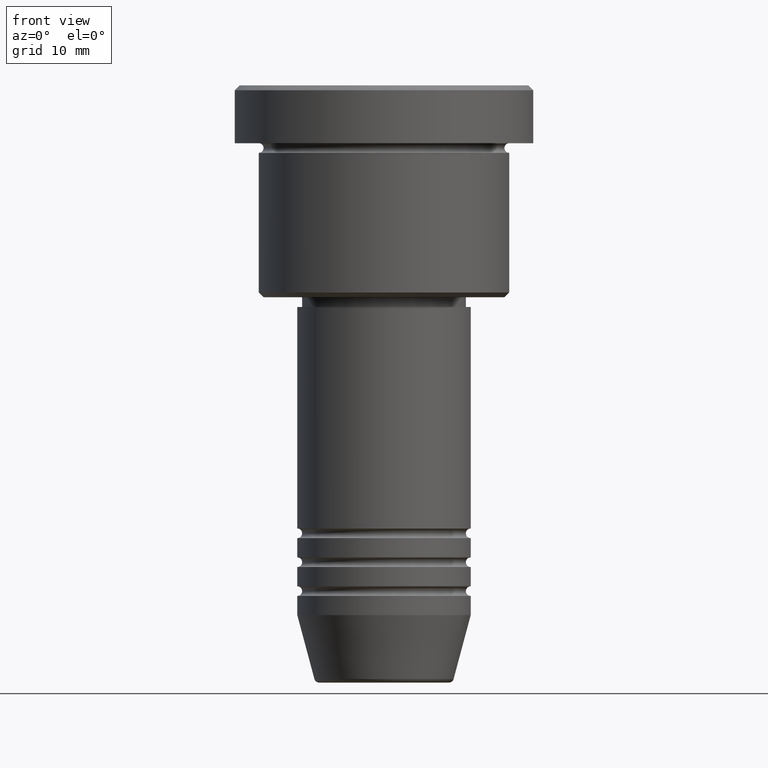
[diagram: clean part render]
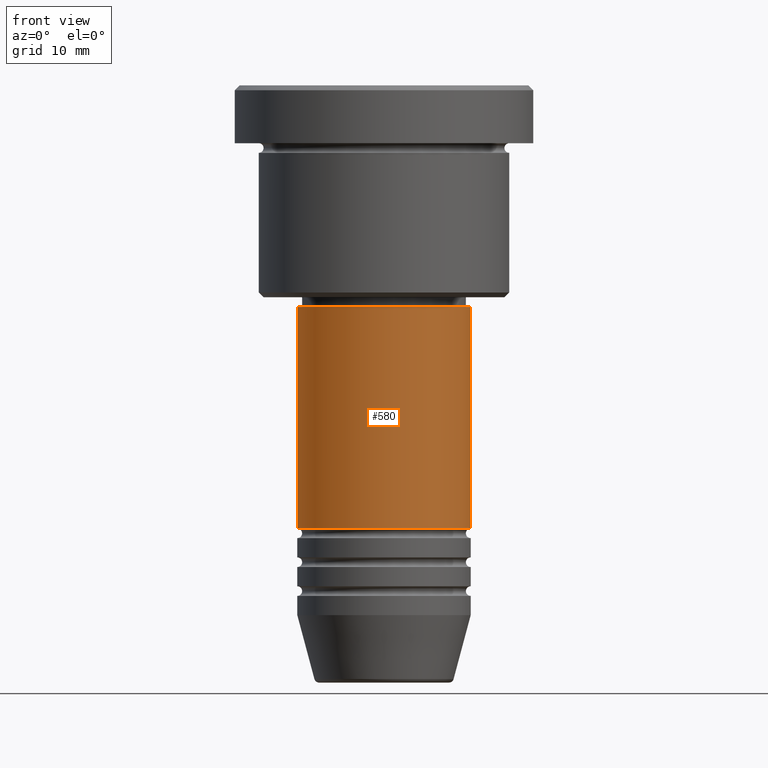
[diagram: same view with one face highlighted and labeled with its STEP entity id]
A machine part, front view. The second image highlights one B-rep face of the part: STEP entity #580.
In plain terms, the highlighted cylindrical surface (partial cylindrical patch) has radius 9 mm, axis along (-0, -0, 1).
Its self-contained STEP definition (entity closure, byte-faithful):
#29 = VERTEX_POINT ( 'NONE', #727 ) ;
#31 = DIRECTION ( 'NONE',  ( 1.000000000000000000, 0.000000000000000000, 0.000000000000000000 ) ) ;
#84 = DIRECTION ( 'NONE',  ( 1.000000000000000000, 0.000000000000000000, 0.000000000000000000 ) ) ;
#88 = EDGE_CURVE ( 'NONE', #29, #304, #425, .T. ) ;
#91 = DIRECTION ( 'NONE',  ( -0.000000000000000000, -0.000000000000000000, 1.000000000000000000 ) ) ;
#115 = DIRECTION ( 'NONE',  ( 1.000000000000000000, 0.000000000000000000, 0.000000000000000000 ) ) ;
#124 = CARTESIAN_POINT ( 'NONE',  ( -9.000000000000000000, 1.102182119232617714E-15, -23.00000000000000711 ) ) ;
#151 = AXIS2_PLACEMENT_3D ( 'NONE', #925, #1003, #84 ) ;
#189 = VERTEX_POINT ( 'NONE', #285 ) ;
#216 = CYLINDRICAL_SURFACE ( 'NONE', #963, 9.000000000000000000 ) ;
#250 = DIRECTION ( 'NONE',  ( -0.000000000000000000, -0.000000000000000000, 1.000000000000000000 ) ) ;
#285 = CARTESIAN_POINT ( 'NONE',  ( 9.000000000000000000, 0.000000000000000000, -45.99999999999997868 ) ) ;
#301 = FACE_OUTER_BOUND ( 'NONE', #1152, .T. ) ;
#304 = VERTEX_POINT ( 'NONE', #124 ) ;
#340 = AXIS2_PLACEMENT_3D ( 'NONE', #481, #566, #115 ) ;
#425 = LINE ( 'NONE', #1068, #978 ) ;
#462 = LINE ( 'NONE', #921, #1051 ) ;
#469 = VERTEX_POINT ( 'NONE', #934 ) ;
#481 = CARTESIAN_POINT ( 'NONE',  ( 0.000000000000000000, 0.000000000000000000, -23.00000000000000711 ) ) ;
#566 = DIRECTION ( 'NONE',  ( -0.000000000000000000, -0.000000000000000000, 1.000000000000000000 ) ) ;
#580 = ADVANCED_FACE ( 'NONE', ( #301 ), #216, .T. ) ;
#657 = CARTESIAN_POINT ( 'NONE',  ( 0.000000000000000000, 0.000000000000000000, 0.000000000000000000 ) ) ;
#707 = CIRCLE ( 'NONE', #151, 9.000000000000000000 ) ;
#709 = ORIENTED_EDGE ( 'NONE', *, *, #1026, .F. ) ;
#727 = CARTESIAN_POINT ( 'NONE',  ( -9.000000000000000000, 1.102182119232617714E-15, -45.99999999999997868 ) ) ;
#866 = DIRECTION ( 'NONE',  ( -0.000000000000000000, -0.000000000000000000, 1.000000000000000000 ) ) ;
#868 = CIRCLE ( 'NONE', #340, 9.000000000000000000 ) ;
#921 = CARTESIAN_POINT ( 'NONE',  ( 9.000000000000000000, 0.000000000000000000, 0.000000000000000000 ) ) ;
#925 = CARTESIAN_POINT ( 'NONE',  ( 0.000000000000000000, 0.000000000000000000, -45.99999999999997868 ) ) ;
#934 = CARTESIAN_POINT ( 'NONE',  ( 9.000000000000000000, 0.000000000000000000, -23.00000000000000711 ) ) ;
#936 = EDGE_CURVE ( 'NONE', #29, #189, #707, .T. ) ;
#951 = EDGE_CURVE ( 'NONE', #189, #469, #462, .T. ) ;
#963 = AXIS2_PLACEMENT_3D ( 'NONE', #657, #866, #31 ) ;
#978 = VECTOR ( 'NONE', #250, 1000.000000000000000 ) ;
#1003 = DIRECTION ( 'NONE',  ( -0.000000000000000000, -0.000000000000000000, 1.000000000000000000 ) ) ;
#1026 = EDGE_CURVE ( 'NONE', #304, #469, #868, .T. ) ;
#1051 = VECTOR ( 'NONE', #91, 1000.000000000000000 ) ;
#1058 = ORIENTED_EDGE ( 'NONE', *, *, #951, .T. ) ;
#1068 = CARTESIAN_POINT ( 'NONE',  ( -9.000000000000000000, 1.102182119232617714E-15, 0.000000000000000000 ) ) ;
#1144 = ORIENTED_EDGE ( 'NONE', *, *, #936, .T. ) ;
#1152 = EDGE_LOOP ( 'NONE', ( #1174, #1144, #1058, #709 ) ) ;
#1174 = ORIENTED_EDGE ( 'NONE', *, *, #88, .F. ) ;